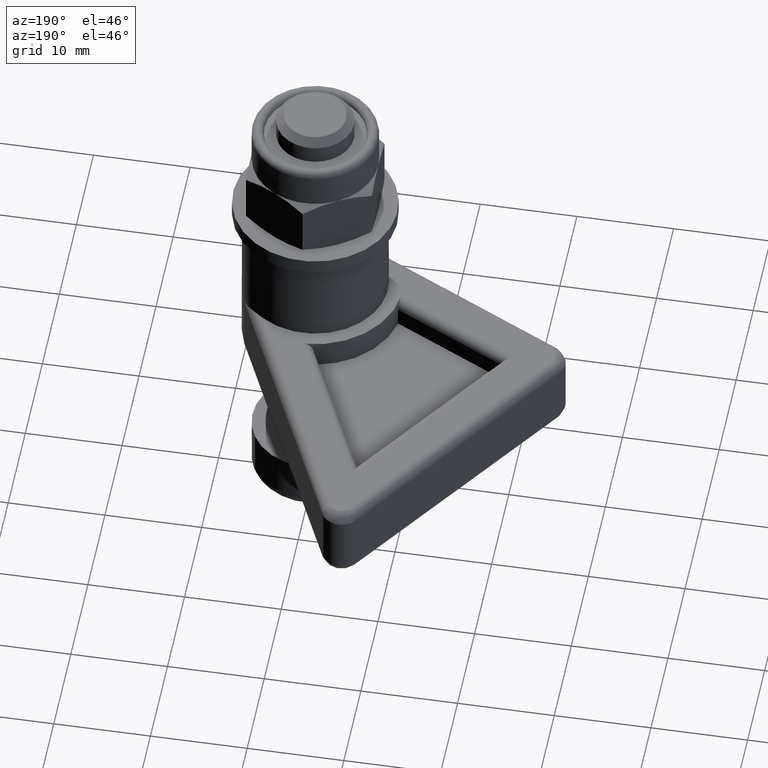
[diagram: clean part render]
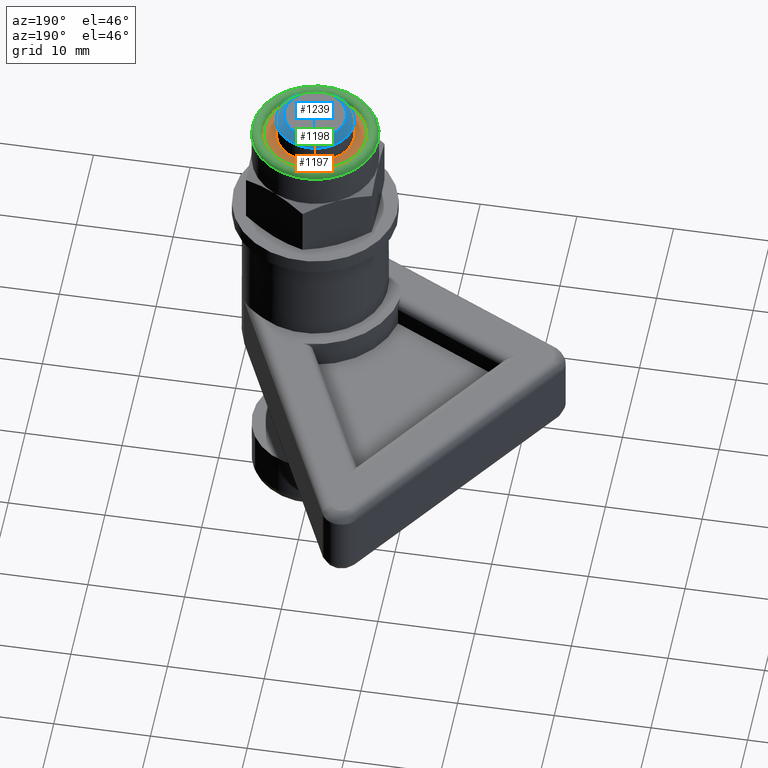
[diagram: same view with three faces highlighted in distinct colors, each labeled with its STEP entity id]
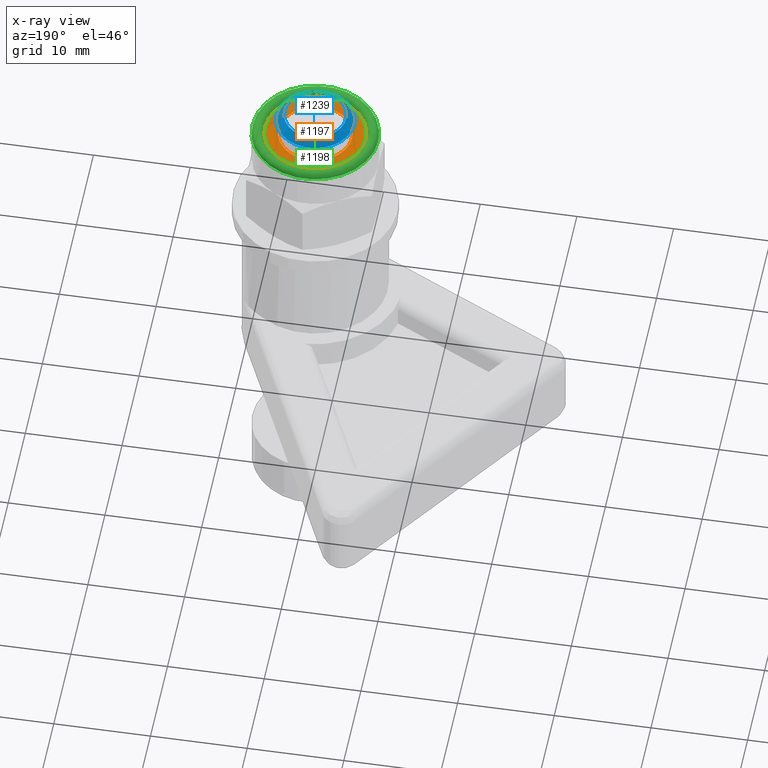
[diagram: x-ray of the same camera — body ghosted, the three highlighted faces saturated]
A machine part, auxiliary view with three faces highlighted in distinct colors.
The next image is the same camera in x-ray (body ghosted, the three faces saturated) — at least one of them is partly hidden behind the body in this view.
Their STEP definitions:

[orange] entity #1197 — the highlighted planar face has unit normal (0, 0, -1).
#252=FACE_BOUND('',#343,.T.);
#264=FACE_OUTER_BOUND('',#342,.T.);
#342=EDGE_LOOP('',(#805,#806));
#343=EDGE_LOOP('',(#807));
#430=CIRCLE('',#1403,3.79166666666667);
#431=CIRCLE('',#1405,5.25);
#432=CIRCLE('',#1406,5.25);
#507=VERTEX_POINT('',#1954);
#508=VERTEX_POINT('',#1958);
#509=VERTEX_POINT('',#1959);
#623=EDGE_CURVE('',#507,#507,#430,.T.);
#624=EDGE_CURVE('',#508,#509,#431,.T.);
#625=EDGE_CURVE('',#509,#508,#432,.T.);
#805=ORIENTED_EDGE('',*,*,#624,.F.);
#806=ORIENTED_EDGE('',*,*,#625,.F.);
#807=ORIENTED_EDGE('',*,*,#623,.T.);
#1157=PLANE('',#1404);
#1197=ADVANCED_FACE('',(#264,#252),#1157,.F.);
#1403=AXIS2_PLACEMENT_3D('',#1956,#1572,#1573);
#1404=AXIS2_PLACEMENT_3D('',#1957,#1574,#1575);
#1405=AXIS2_PLACEMENT_3D('',#1960,#1576,#1577);
#1406=AXIS2_PLACEMENT_3D('',#1961,#1578,#1579);
#1572=DIRECTION('center_axis',(0.,0.,-1.));
#1573=DIRECTION('ref_axis',(-1.,0.,0.));
#1574=DIRECTION('center_axis',(0.,0.,-1.));
#1575=DIRECTION('ref_axis',(-1.,0.,0.));
#1576=DIRECTION('center_axis',(0.,0.,-1.));
#1577=DIRECTION('ref_axis',(-1.,-1.22464679914735E-16,0.));
#1578=DIRECTION('center_axis',(0.,0.,-1.));
#1579=DIRECTION('ref_axis',(-1.,-1.22464679914735E-16,0.));
#1954=CARTESIAN_POINT('',(3.79166666666667,4.64345244676705E-16,9.975));
#1956=CARTESIAN_POINT('Origin',(0.,0.,9.975));
#1957=CARTESIAN_POINT('Origin',(0.,0.,9.975));
#1958=CARTESIAN_POINT('',(5.25,0.,9.975));
#1959=CARTESIAN_POINT('',(-5.25,-6.42939569552361E-16,9.975));
#1960=CARTESIAN_POINT('Origin',(0.,0.,9.975));
#1961=CARTESIAN_POINT('Origin',(0.,0.,9.975));

[blue] entity #1239 — the highlighted conical surface has half-angle 45 deg.
#94=CONICAL_SURFACE('',#1488,3.6,0.785398163397451);
#127=LINE('',#2230,#192);
#192=VECTOR('',#1775,3.6);
#306=FACE_OUTER_BOUND('',#391,.T.);
#391=EDGE_LOOP('',(#1002,#1003,#1004,#1005,#1006,#1007));
#469=CIRCLE('',#1486,4.);
#470=CIRCLE('',#1487,4.);
#471=CIRCLE('',#1489,3.2);
#472=CIRCLE('',#1490,3.2);
#570=VERTEX_POINT('',#2220);
#571=VERTEX_POINT('',#2221);
#572=VERTEX_POINT('',#2226);
#573=VERTEX_POINT('',#2227);
#719=EDGE_CURVE('',#570,#571,#469,.T.);
#720=EDGE_CURVE('',#571,#570,#470,.T.);
#722=EDGE_CURVE('',#572,#573,#471,.T.);
#723=EDGE_CURVE('',#573,#572,#472,.T.);
#724=EDGE_CURVE('',#573,#571,#127,.T.);
#1002=ORIENTED_EDGE('',*,*,#722,.F.);
#1003=ORIENTED_EDGE('',*,*,#723,.F.);
#1004=ORIENTED_EDGE('',*,*,#724,.T.);
#1005=ORIENTED_EDGE('',*,*,#720,.T.);
#1006=ORIENTED_EDGE('',*,*,#719,.T.);
#1007=ORIENTED_EDGE('',*,*,#724,.F.);
#1239=ADVANCED_FACE('',(#306),#94,.T.);
#1486=AXIS2_PLACEMENT_3D('',#2222,#1764,#1765);
#1487=AXIS2_PLACEMENT_3D('',#2223,#1766,#1767);
#1488=AXIS2_PLACEMENT_3D('',#2225,#1769,#1770);
#1489=AXIS2_PLACEMENT_3D('',#2228,#1771,#1772);
#1490=AXIS2_PLACEMENT_3D('',#2229,#1773,#1774);
#1764=DIRECTION('center_axis',(1.,1.06036163100756E-33,0.));
#1765=DIRECTION('ref_axis',(0.,1.,0.));
#1766=DIRECTION('center_axis',(1.,1.06036163100756E-33,0.));
#1767=DIRECTION('ref_axis',(0.,1.,0.));
#1769=DIRECTION('center_axis',(-1.,-1.06036163100756E-33,0.));
#1770=DIRECTION('ref_axis',(0.,1.,0.));
#1771=DIRECTION('center_axis',(1.,1.06036163100756E-33,0.));
#1772=DIRECTION('ref_axis',(0.,1.,0.));
#1773=DIRECTION('center_axis',(1.,1.06036163100756E-33,0.));
#1774=DIRECTION('ref_axis',(0.,1.,0.));
#1775=DIRECTION('',(-0.707106781186546,-0.707106781186549,-8.65956056235496E-17));
#2220=CARTESIAN_POINT('',(50.2,4.,0.));
#2221=CARTESIAN_POINT('',(50.2,-4.,-4.89858719658941E-16));
#2222=CARTESIAN_POINT('Origin',(50.2,4.84585265370453E-32,0.));
#2223=CARTESIAN_POINT('Origin',(50.2,4.84585265370453E-32,0.));
#2225=CARTESIAN_POINT('Origin',(50.6,4.88826711894483E-32,0.));
#2226=CARTESIAN_POINT('',(51.,3.2,0.));
#2227=CARTESIAN_POINT('',(51.,-3.2,-3.91886975727153E-16));
#2228=CARTESIAN_POINT('Origin',(51.,4.93068158418513E-32,0.));
#2229=CARTESIAN_POINT('Origin',(51.,4.93068158418513E-32,0.));
#2230=CARTESIAN_POINT('',(50.6,-3.6,-4.40872847693047E-16));

[green] entity #1198 — the highlighted toroidal blend (fillet) surface has major radius 5.875 mm and minor (blend) radius 0.625 mm.
#95=TOROIDAL_SURFACE('',#1407,5.87499999999996,0.625);
#265=FACE_OUTER_BOUND('',#344,.T.);
#344=EDGE_LOOP('',(#808,#809,#810,#811,#812));
#431=CIRCLE('',#1405,5.25);
#432=CIRCLE('',#1406,5.25);
#433=CIRCLE('',#1408,0.625);
#434=CIRCLE('',#1409,6.49999999999996);
#508=VERTEX_POINT('',#1958);
#509=VERTEX_POINT('',#1959);
#510=VERTEX_POINT('',#1963);
#624=EDGE_CURVE('',#508,#509,#431,.T.);
#625=EDGE_CURVE('',#509,#508,#432,.T.);
#626=EDGE_CURVE('',#509,#510,#433,.T.);
#627=EDGE_CURVE('',#510,#510,#434,.T.);
#808=ORIENTED_EDGE('',*,*,#624,.T.);
#809=ORIENTED_EDGE('',*,*,#626,.T.);
#810=ORIENTED_EDGE('',*,*,#627,.T.);
#811=ORIENTED_EDGE('',*,*,#626,.F.);
#812=ORIENTED_EDGE('',*,*,#625,.T.);
#1198=ADVANCED_FACE('',(#265),#95,.T.);
#1405=AXIS2_PLACEMENT_3D('',#1960,#1576,#1577);
#1406=AXIS2_PLACEMENT_3D('',#1961,#1578,#1579);
#1407=AXIS2_PLACEMENT_3D('',#1962,#1580,#1581);
#1408=AXIS2_PLACEMENT_3D('',#1964,#1582,#1583);
#1409=AXIS2_PLACEMENT_3D('',#1965,#1584,#1585);
#1576=DIRECTION('center_axis',(0.,0.,-1.));
#1577=DIRECTION('ref_axis',(-1.,-1.22464679914735E-16,0.));
#1578=DIRECTION('center_axis',(0.,0.,-1.));
#1579=DIRECTION('ref_axis',(-1.,-1.22464679914735E-16,0.));
#1580=DIRECTION('center_axis',(0.,0.,1.));
#1581=DIRECTION('ref_axis',(1.,0.,0.));
#1582=DIRECTION('center_axis',(1.22464679914735E-16,-1.,0.));
#1583=DIRECTION('ref_axis',(-1.,-1.22464679914735E-16,0.));
#1584=DIRECTION('center_axis',(0.,0.,1.));
#1585=DIRECTION('ref_axis',(1.,9.76996261670138E-15,0.));
#1958=CARTESIAN_POINT('',(5.25,0.,9.975));
#1959=CARTESIAN_POINT('',(-5.25,-6.42939569552361E-16,9.975));
#1960=CARTESIAN_POINT('Origin',(0.,0.,9.975));
#1961=CARTESIAN_POINT('Origin',(0.,0.,9.975));
#1962=CARTESIAN_POINT('Origin',(0.,0.,9.975));
#1963=CARTESIAN_POINT('',(-6.49999999999996,-6.43007774280043E-14,9.975));
#1964=CARTESIAN_POINT('Origin',(-5.87499999999996,-7.19479994499065E-16,
9.975));
#1965=CARTESIAN_POINT('Origin',(0.,0.,9.975));